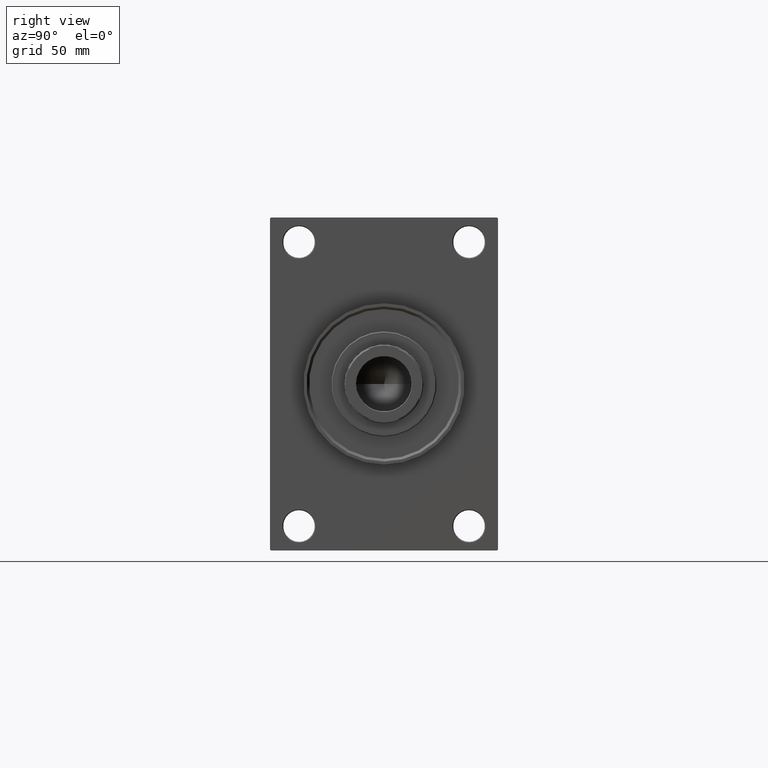
[diagram: clean part render]
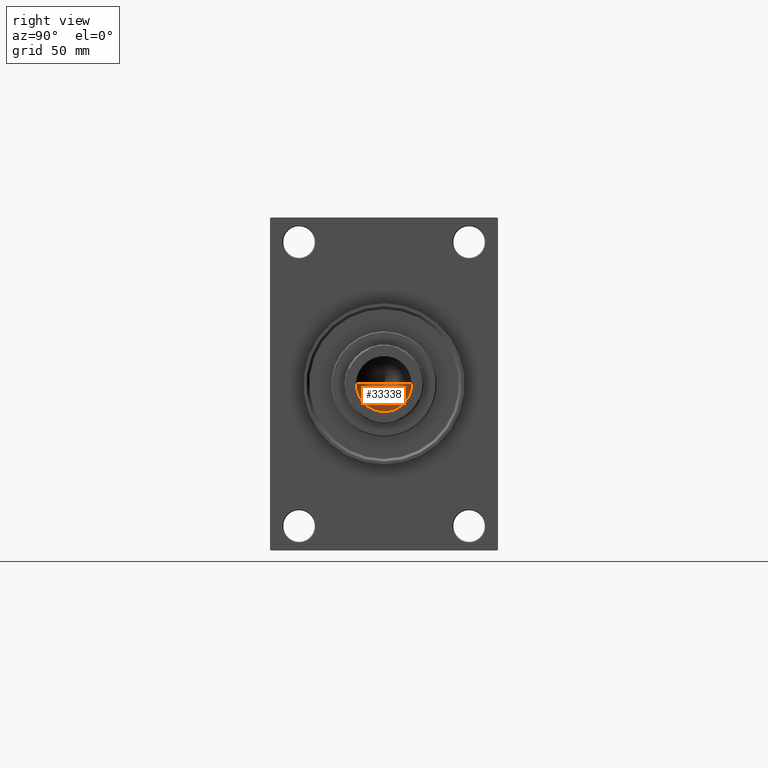
[diagram: same view with one face highlighted and labeled with its STEP entity id]
A machine part, right view. The second image highlights one B-rep face of the part: STEP entity #33338.
In plain terms, the highlighted conical surface has half-angle 59 deg.
Its self-contained STEP definition (entity closure, byte-faithful):
#2820 = VERTEX_POINT ( 'NONE', #9275 ) ;
#3306 = DIRECTION ( 'NONE',  ( -0.000000000000000000, -0.000000000000000000, 1.000000000000000000 ) ) ;
#3779 = CARTESIAN_POINT ( 'NONE',  ( 0.000000000000000000, 0.000000000000000000, 228.0000000000000284 ) ) ;
#4230 = EDGE_LOOP ( 'NONE', ( #46990, #21211, #47011 ) ) ;
#4260 = DIRECTION ( 'NONE',  ( 1.000000000000000000, 0.000000000000000000, 0.000000000000000000 ) ) ;
#4417 = DIRECTION ( 'NONE',  ( -0.8571673007021112234, 1.049727191138617340E-16, 0.5150380749100560429 ) ) ;
#5105 = LINE ( 'NONE', #41446, #20633 ) ;
#6270 = EDGE_CURVE ( 'NONE', #2820, #43195, #41481, .T. ) ;
#7663 = DIRECTION ( 'NONE',  ( -0.000000000000000000, -0.000000000000000000, 1.000000000000000000 ) ) ;
#9275 = CARTESIAN_POINT ( 'NONE',  ( -1.584115414415908206E-14, 0.000000000000000000, 218.5364452503159214 ) ) ;
#10416 = AXIS2_PLACEMENT_3D ( 'NONE', #18834, #3306, #4260 ) ;
#12025 = EDGE_CURVE ( 'NONE', #38724, #43195, #29821, .T. ) ;
#13901 = EDGE_CURVE ( 'NONE', #2820, #38724, #5105, .T. ) ;
#16678 = AXIS2_PLACEMENT_3D ( 'NONE', #3779, #7663, #22462 ) ;
#18834 = CARTESIAN_POINT ( 'NONE',  ( 0.000000000000000000, 0.000000000000000000, 228.0000000000000284 ) ) ;
#19919 = DIRECTION ( 'NONE',  ( 0.8571673007021112234, 0.000000000000000000, 0.5150380749100560429 ) ) ;
#20633 = VECTOR ( 'NONE', #19919, 1000.000000000000000 ) ;
#21211 = ORIENTED_EDGE ( 'NONE', *, *, #13901, .T. ) ;
#22056 = VECTOR ( 'NONE', #4417, 1000.000000000000000 ) ;
#22462 = DIRECTION ( 'NONE',  ( 1.000000000000000000, 0.000000000000000000, 0.000000000000000000 ) ) ;
#22702 = FACE_OUTER_BOUND ( 'NONE', #4230, .T. ) ;
#27619 = CARTESIAN_POINT ( 'NONE',  ( 15.74999999999998934, 0.000000000000000000, 228.0000000000000284 ) ) ;
#29821 = CIRCLE ( 'NONE', #16678, 15.74999999999998934 ) ;
#33338 = ADVANCED_FACE ( 'NONE', ( #22702 ), #45226, .F. ) ;
#35396 = CARTESIAN_POINT ( 'NONE',  ( -15.74999999999998934, 1.928818708657080161E-15, 228.0000000000000284 ) ) ;
#38724 = VERTEX_POINT ( 'NONE', #27619 ) ;
#41446 = CARTESIAN_POINT ( 'NONE',  ( 15.74999999999998934, 0.000000000000000000, 228.0000000000000284 ) ) ;
#41481 = LINE ( 'NONE', #41718, #22056 ) ;
#41718 = CARTESIAN_POINT ( 'NONE',  ( -15.74999999999998934, 1.928818708657080161E-15, 228.0000000000000284 ) ) ;
#43195 = VERTEX_POINT ( 'NONE', #35396 ) ;
#45226 = CONICAL_SURFACE ( 'NONE', #10416, 15.74999999999998934, 1.029744258676652313 ) ;
#46990 = ORIENTED_EDGE ( 'NONE', *, *, #6270, .F. ) ;
#47011 = ORIENTED_EDGE ( 'NONE', *, *, #12025, .T. ) ;